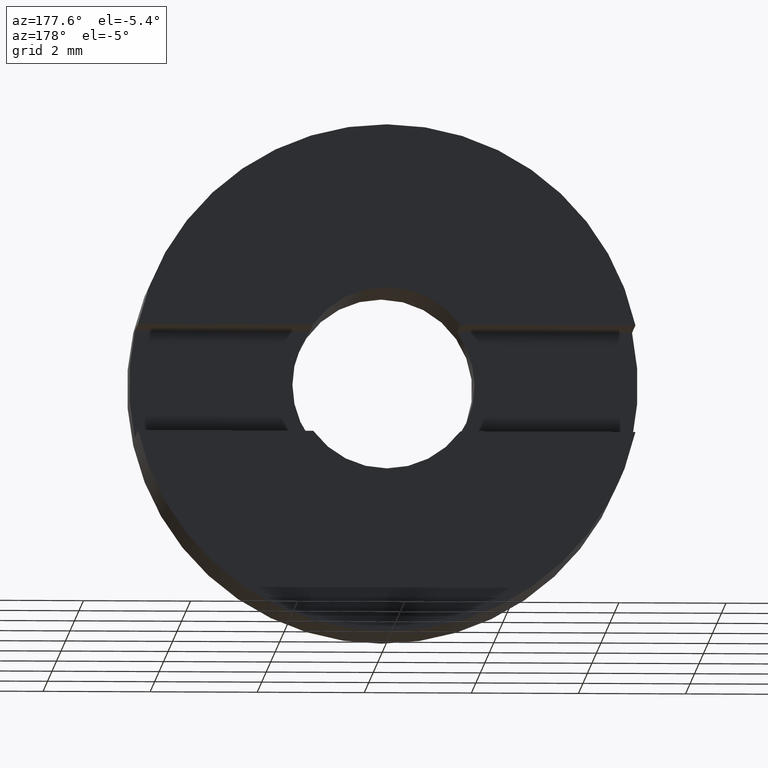
[diagram: clean part render]
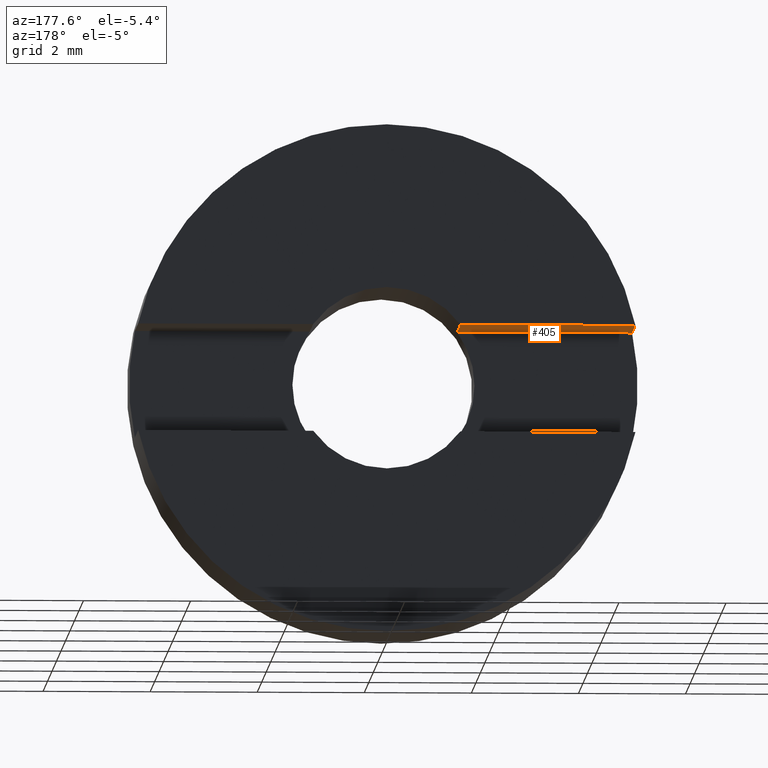
[diagram: same view with one face highlighted and labeled with its STEP entity id]
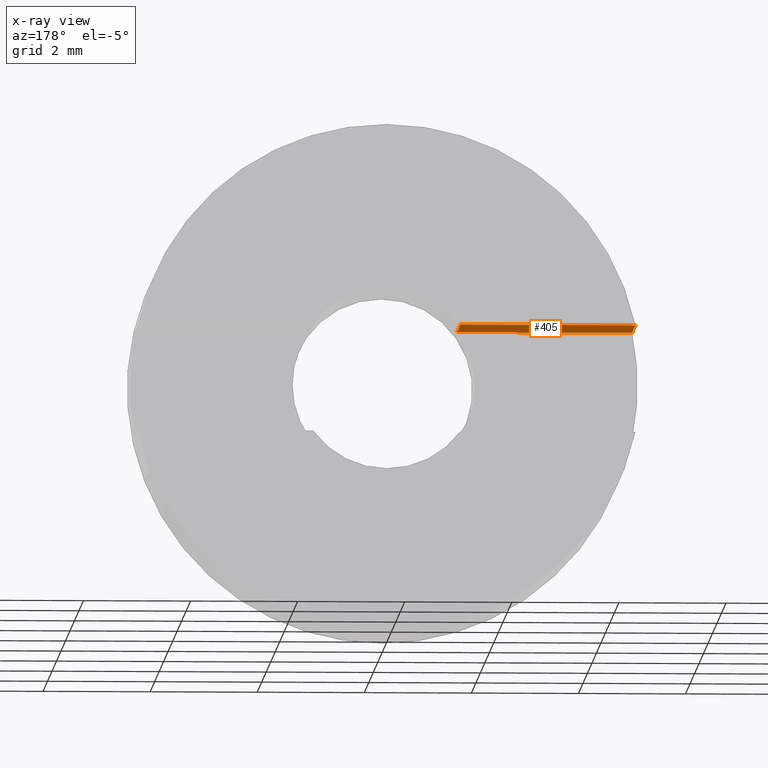
[diagram: x-ray of the same camera — body ghosted, the highlighted face saturated]
A machine part, auxiliary view. The second image highlights one B-rep face of the part: STEP entity #405.
The next image is the same camera in x-ray: the body ghosted, the highlighted face saturated — about 0% of this face is hidden behind the body in this view.
In plain terms, the highlighted planar face has unit normal (-0, 0, 1).
Its self-contained STEP definition (entity closure, byte-faithful):
#23 = LINE ( 'NONE', #494, #122 ) ;
#61 = FACE_OUTER_BOUND ( 'NONE', #316, .T. ) ;
#91 = EDGE_CURVE ( 'NONE', #529, #256, #23, .T. ) ;
#94 = DIRECTION ( 'NONE',  ( -0.0000000000000000000, 0.0000000000000000000, 1.000000000000000000 ) ) ;
#122 = VECTOR ( 'NONE', #221, 1000.000000000000000 ) ;
#138 = DIRECTION ( 'NONE',  ( 1.000000000000000000, 0.0000000000000000000, 0.0000000000000000000 ) ) ;
#160 = CARTESIAN_POINT ( 'NONE',  ( -4.643543905251693400, -1.964249787179431300, 1.000000000000000000 ) ) ;
#163 = VECTOR ( 'NONE', #386, 1000.000000000000000 ) ;
#170 = VERTEX_POINT ( 'NONE', #160 ) ;
#175 = LINE ( 'NONE', #341, #397 ) ;
#177 = CARTESIAN_POINT ( 'NONE',  ( -26.85254027261461800, -3.464249787179431600, 1.000000000000000000 ) ) ;
#187 = LINE ( 'NONE', #427, #463 ) ;
#198 = EDGE_CURVE ( 'NONE', #170, #256, #211, .T. ) ;
#211 = LINE ( 'NONE', #570, #163 ) ;
#217 = CARTESIAN_POINT ( 'NONE',  ( -1.374772708486760900, -1.964249787179434000, 0.9999999999999995600 ) ) ;
#221 = DIRECTION ( 'NONE',  ( -0.0000000000000000000, 1.000000000000000000, -0.0000000000000000000 ) ) ;
#227 = ORIENTED_EDGE ( 'NONE', *, *, #525, .F. ) ;
#228 = VERTEX_POINT ( 'NONE', #306 ) ;
#233 = PLANE ( 'NONE',  #297 ) ;
#242 = ORIENTED_EDGE ( 'NONE', *, *, #91, .F. ) ;
#245 = ORIENTED_EDGE ( 'NONE', *, *, #477, .F. ) ;
#256 = VERTEX_POINT ( 'NONE', #217 ) ;
#259 = DIRECTION ( 'NONE',  ( 1.000000000000000000, 0.0000000000000000000, 0.0000000000000000000 ) ) ;
#268 = CARTESIAN_POINT ( 'NONE',  ( -1.374772708486760900, -3.464249787179428400, 0.9999999999999995600 ) ) ;
#274 = ORIENTED_EDGE ( 'NONE', *, *, #198, .T. ) ;
#297 = AXIS2_PLACEMENT_3D ( 'NONE', #177, #94, #138 ) ;
#306 = CARTESIAN_POINT ( 'NONE',  ( -4.643543905251684500, -3.464249787179428400, 0.9999999999999995600 ) ) ;
#316 = EDGE_LOOP ( 'NONE', ( #274, #242, #245, #227 ) ) ;
#341 = CARTESIAN_POINT ( 'NONE',  ( -26.85254027261461800, -3.464249787179431600, 1.000000000000000000 ) ) ;
#386 = DIRECTION ( 'NONE',  ( 1.000000000000000000, 0.0000000000000000000, 0.0000000000000000000 ) ) ;
#397 = VECTOR ( 'NONE', #259, 1000.000000000000000 ) ;
#405 = ADVANCED_FACE ( 'NONE', ( #61 ), #233, .F. ) ;
#427 = CARTESIAN_POINT ( 'NONE',  ( -4.643543905251685400, 56.26084262701361600, 1.000000000000000000 ) ) ;
#463 = VECTOR ( 'NONE', #574, 1000.000000000000000 ) ;
#477 = EDGE_CURVE ( 'NONE', #228, #529, #175, .T. ) ;
#494 = CARTESIAN_POINT ( 'NONE',  ( -1.374772708486760900, 56.26084262701361600, 1.000000000000000000 ) ) ;
#525 = EDGE_CURVE ( 'NONE', #170, #228, #187, .T. ) ;
#529 = VERTEX_POINT ( 'NONE', #268 ) ;
#570 = CARTESIAN_POINT ( 'NONE',  ( -26.85254027261461800, -1.964249787179431300, 1.000000000000000000 ) ) ;
#574 = DIRECTION ( 'NONE',  ( 0.0000000000000000000, -1.000000000000000000, 0.0000000000000000000 ) ) ;